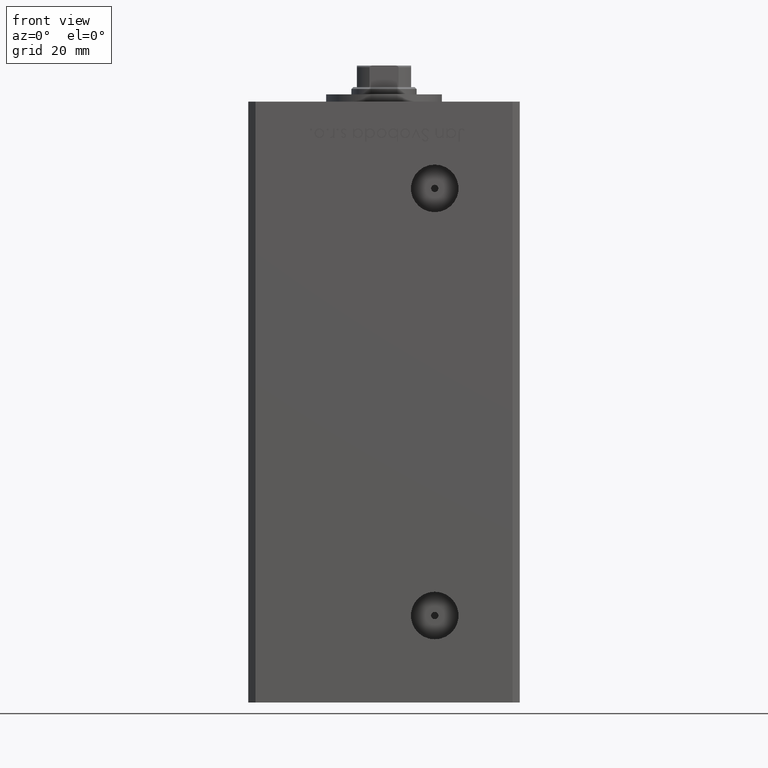
[diagram: clean part render]
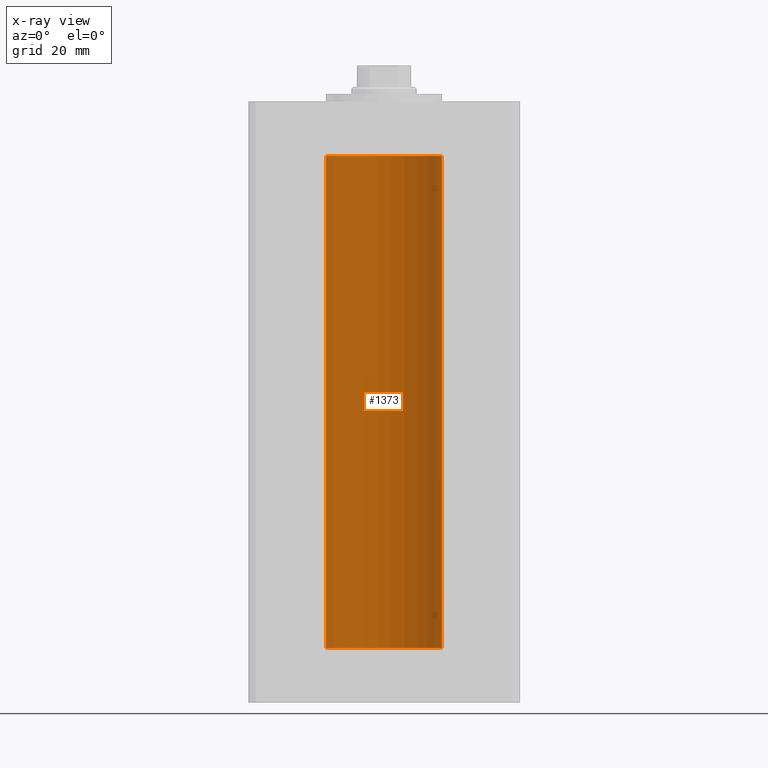
[diagram: x-ray — body ghosted, one internal face saturated and labeled with its STEP entity id]
A machine part, front view, then the same camera in x-ray: the body is ghosted and one INTERNAL B-rep face — a face not visible from any outside direction — is saturated and labeled: STEP entity #1373.
In plain terms, the highlighted cylindrical surface (partial cylindrical patch) has radius 16 mm, axis along (-0, -0, -1).
Its self-contained STEP definition (entity closure, byte-faithful):
#1373 = ADVANCED_FACE ( 'NONE', ( #11839 ), #15542, .F. ) ;
#2189 = VERTEX_POINT ( 'NONE', #21697 ) ;
#2425 = ORIENTED_EDGE ( 'NONE', *, *, #18311, .F. ) ;
#3202 = CARTESIAN_POINT ( 'NONE',  ( -16.00000000000000000, 0.000000000000000000, 136.0000000000000000 ) ) ;
#4934 = CARTESIAN_POINT ( 'NONE',  ( 16.00000000000000000, 1.959434878635765131E-15, 0.000000000000000000 ) ) ;
#6235 = CARTESIAN_POINT ( 'NONE',  ( 16.00000000000000000, 1.959434878635765131E-15, 136.0000000000000000 ) ) ;
#7101 = VERTEX_POINT ( 'NONE', #35889 ) ;
#7259 = ORIENTED_EDGE ( 'NONE', *, *, #25822, .T. ) ;
#8105 = DIRECTION ( 'NONE',  ( -0.000000000000000000, 0.000000000000000000, 1.000000000000000000 ) ) ;
#10297 = CARTESIAN_POINT ( 'NONE',  ( 16.00000000000000000, 1.959434878635765131E-15, 136.0000000000000000 ) ) ;
#11839 = FACE_OUTER_BOUND ( 'NONE', #40606, .T. ) ;
#11905 = VECTOR ( 'NONE', #24200, 1000.000000000000000 ) ;
#14262 = ORIENTED_EDGE ( 'NONE', *, *, #35302, .F. ) ;
#15542 = CYLINDRICAL_SURFACE ( 'NONE', #18368, 16.00000000000000000 ) ;
#15929 = DIRECTION ( 'NONE',  ( 1.000000000000000000, 0.000000000000000000, 0.000000000000000000 ) ) ;
#16181 = DIRECTION ( 'NONE',  ( -0.000000000000000000, 0.000000000000000000, 1.000000000000000000 ) ) ;
#18311 = EDGE_CURVE ( 'NONE', #48631, #43029, #27636, .T. ) ;
#18368 = AXIS2_PLACEMENT_3D ( 'NONE', #18524, #43526, #47749 ) ;
#18524 = CARTESIAN_POINT ( 'NONE',  ( 0.000000000000000000, 0.000000000000000000, 136.0000000000000000 ) ) ;
#21697 = CARTESIAN_POINT ( 'NONE',  ( -16.00000000000000000, 0.000000000000000000, 136.0000000000000000 ) ) ;
#24200 = DIRECTION ( 'NONE',  ( -0.000000000000000000, -0.000000000000000000, -1.000000000000000000 ) ) ;
#25822 = EDGE_CURVE ( 'NONE', #2189, #7101, #39360, .T. ) ;
#27636 = LINE ( 'NONE', #10297, #11905 ) ;
#27735 = DIRECTION ( 'NONE',  ( -0.000000000000000000, -0.000000000000000000, -1.000000000000000000 ) ) ;
#28531 = ORIENTED_EDGE ( 'NONE', *, *, #45793, .T. ) ;
#30746 = AXIS2_PLACEMENT_3D ( 'NONE', #44938, #16181, #15929 ) ;
#33268 = CIRCLE ( 'NONE', #30746, 16.00000000000000000 ) ;
#33855 = VECTOR ( 'NONE', #27735, 1000.000000000000000 ) ;
#35302 = EDGE_CURVE ( 'NONE', #43029, #7101, #33268, .T. ) ;
#35889 = CARTESIAN_POINT ( 'NONE',  ( -16.00000000000000000, 0.000000000000000000, 0.000000000000000000 ) ) ;
#36062 = CARTESIAN_POINT ( 'NONE',  ( 0.000000000000000000, 0.000000000000000000, 136.0000000000000000 ) ) ;
#39061 = CIRCLE ( 'NONE', #45814, 16.00000000000000000 ) ;
#39360 = LINE ( 'NONE', #3202, #33855 ) ;
#40606 = EDGE_LOOP ( 'NONE', ( #2425, #28531, #7259, #14262 ) ) ;
#43029 = VERTEX_POINT ( 'NONE', #4934 ) ;
#43526 = DIRECTION ( 'NONE',  ( -0.000000000000000000, -0.000000000000000000, -1.000000000000000000 ) ) ;
#44260 = DIRECTION ( 'NONE',  ( 1.000000000000000000, 0.000000000000000000, 0.000000000000000000 ) ) ;
#44938 = CARTESIAN_POINT ( 'NONE',  ( 0.000000000000000000, 0.000000000000000000, 0.000000000000000000 ) ) ;
#45793 = EDGE_CURVE ( 'NONE', #48631, #2189, #39061, .T. ) ;
#45814 = AXIS2_PLACEMENT_3D ( 'NONE', #36062, #8105, #44260 ) ;
#47749 = DIRECTION ( 'NONE',  ( -1.000000000000000000, 0.000000000000000000, 0.000000000000000000 ) ) ;
#48631 = VERTEX_POINT ( 'NONE', #6235 ) ;